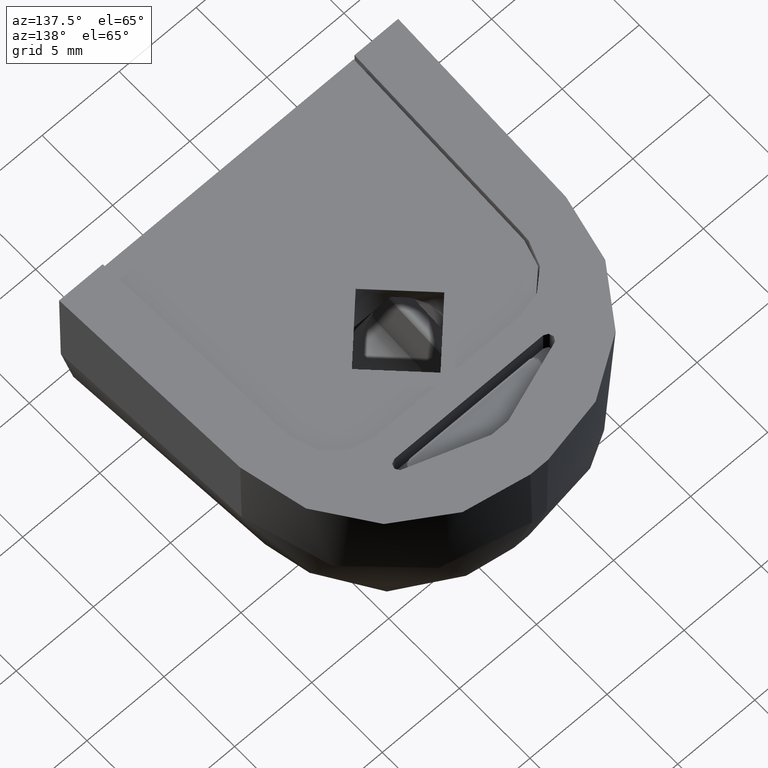
[diagram: clean part render]
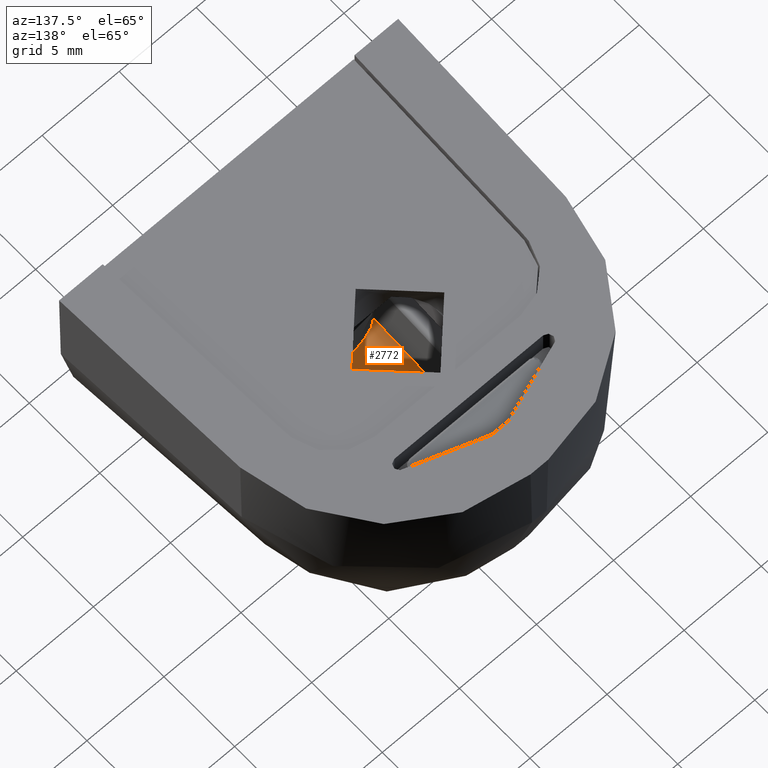
[diagram: same view with one face highlighted and labeled with its STEP entity id]
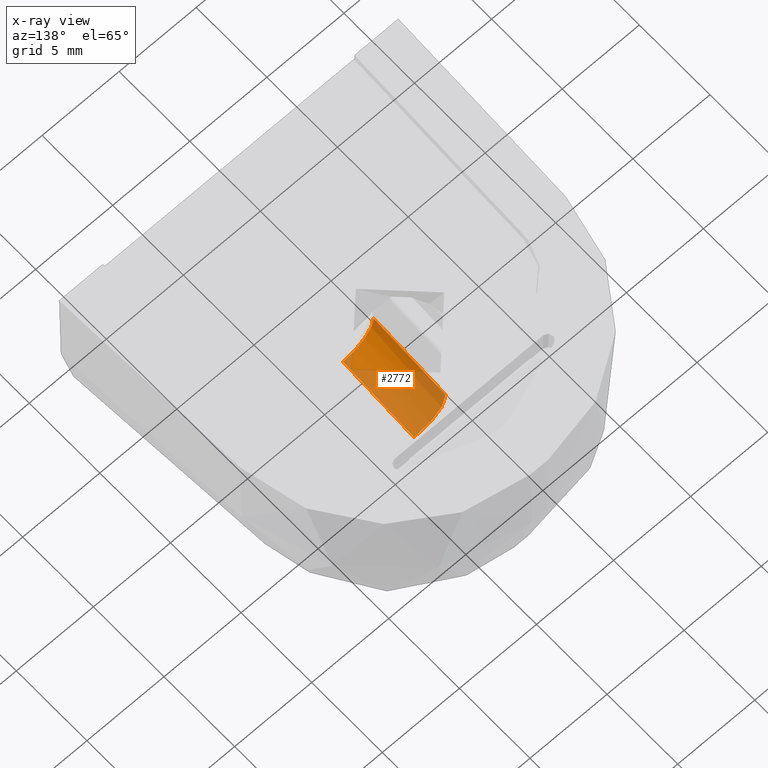
[diagram: x-ray of the same camera — body ghosted, the highlighted face saturated]
A machine part, auxiliary view. The second image highlights one B-rep face of the part: STEP entity #2772.
The next image is the same camera in x-ray: the body ghosted, the highlighted face saturated — about 64% of this face is hidden behind the body in this view.
In plain terms, the highlighted cylindrical surface (partial cylindrical patch) has radius 2 mm, axis along (0.0349, 0.9994, 0).
Its self-contained STEP definition (entity closure, byte-faithful):
#211=CIRCLE('',#3019,2.);
#301=CYLINDRICAL_SURFACE('',#3018,2.);
#415=FACE_OUTER_BOUND('',#582,.T.);
#582=EDGE_LOOP('',(#2260,#2261,#2262,#2263));
#785=LINE('',#4565,#997);
#802=LINE('',#4701,#1014);
#997=VECTOR('',#3490,5.31840816967938);
#1014=VECTOR('',#3579,5.23809190147971);
#1111=ELLIPSE('',#3013,2.00157736637414,1.99997705107642);
#1253=VERTEX_POINT('',#4562);
#1254=VERTEX_POINT('',#4564);
#1272=VERTEX_POINT('',#4697);
#1273=VERTEX_POINT('',#4699);
#1575=EDGE_CURVE('',#1253,#1254,#785,.T.);
#1613=EDGE_CURVE('',#1272,#1273,#802,.T.);
#1622=EDGE_CURVE('',#1272,#1253,#1111,.T.);
#1625=EDGE_CURVE('',#1273,#1254,#211,.T.);
#2260=ORIENTED_EDGE('',*,*,#1622,.F.);
#2261=ORIENTED_EDGE('',*,*,#1613,.T.);
#2262=ORIENTED_EDGE('',*,*,#1625,.T.);
#2263=ORIENTED_EDGE('',*,*,#1575,.F.);
#2772=ADVANCED_FACE('',(#415),#301,.F.);
#3013=AXIS2_PLACEMENT_3D('',#4804,#3594,#3595);
#3018=AXIS2_PLACEMENT_3D('',#4809,#3604,#3605);
#3019=AXIS2_PLACEMENT_3D('',#4810,#3606,#3607);
#3490=DIRECTION('',(0.0348994967024999,0.999390827019096,-5.50013795193798E-11));
#3579=DIRECTION('',(0.0348929710317285,0.999391054879158,-3.21600731061186E-7));
#3594=DIRECTION('center_axis',(-0.00522685426595113,0.999986339900965,2.43997512308438E-6));
#3595=DIRECTION('ref_axis',(0.999968999563874,0.00522677799858705,-0.00588903243142191));
#3604=DIRECTION('center_axis',(0.0348994967024999,0.999390827019096,0.));
#3605=DIRECTION('ref_axis',(0.,0.,-1.));
#3606=DIRECTION('center_axis',(0.0348994967024999,0.999390827019096,0.));
#3607=DIRECTION('ref_axis',(0.,0.,-1.));
#4562=CARTESIAN_POINT('',(-3.183782249437,6.789530150989,-11.84999999971));
#4564=CARTESIAN_POINT('',(-2.998172481057,12.10469849011,-11.85));
#4565=CARTESIAN_POINT('',(-3.183782249437,6.789530150989,-11.84999999971));
#4697=CARTESIAN_POINT('',(-1.18216480460431,6.79999733658595,-13.8499932643382));
#4699=CARTESIAN_POINT('',(-0.9993908270191,12.0348994967,-13.85));
#4701=CARTESIAN_POINT('',(-1.182163414666,6.799997343894,-13.84999831543));
#4804=CARTESIAN_POINT('Origin',(-1.18223228028155,6.79999210393455,-11.8500161583361));
#4809=CARTESIAN_POINT('Origin',(-2.432451055739,-29.00257618259,-11.85));
#4810=CARTESIAN_POINT('Origin',(-0.9993908270191,12.0348994967,-11.85));